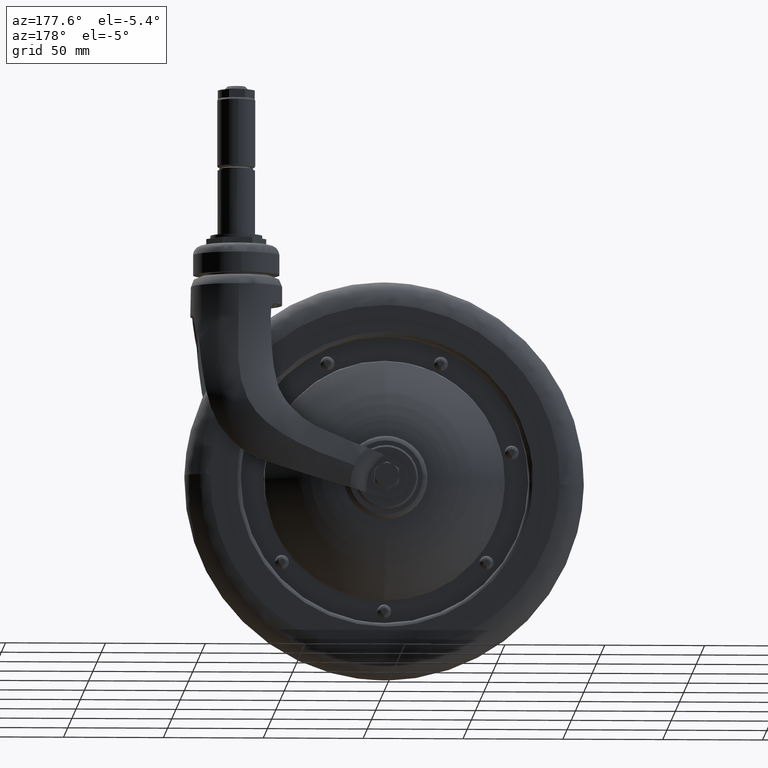
[diagram: clean part render]
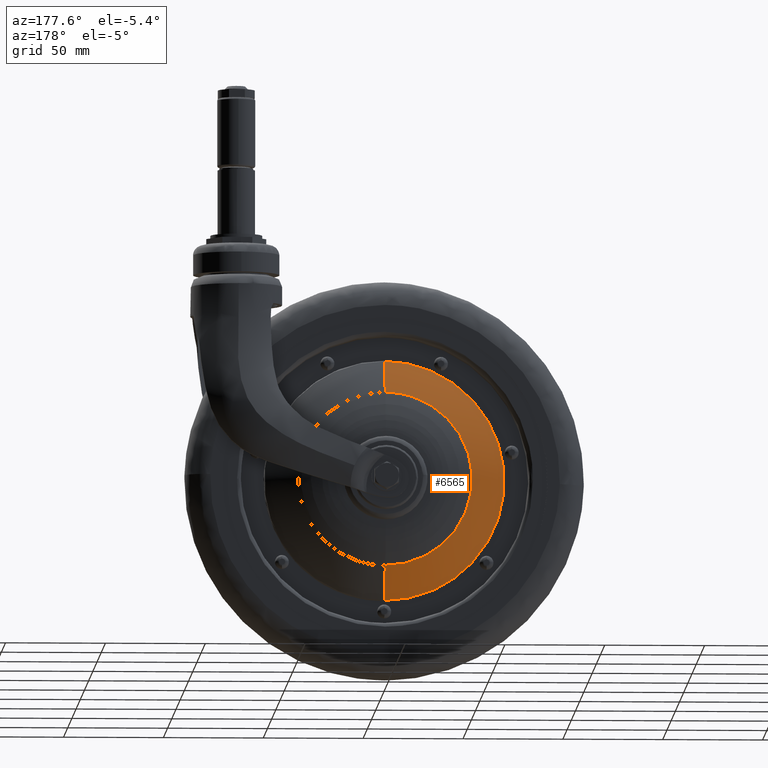
[diagram: same view with one face highlighted and labeled with its STEP entity id]
A machine part, auxiliary view. The second image highlights one B-rep face of the part: STEP entity #6565.
In plain terms, the highlighted face is a freeform B-spline surface patch.
Its self-contained STEP definition (entity closure, byte-faithful):
#6289=CARTESIAN_POINT('',(0.0,14.426294679062700,43.519748776958892));
#6290=VERTEX_POINT('',#6289);
#6304=CARTESIAN_POINT('',(0.0,14.426293921308540,-43.519750632905136));
#6305=VERTEX_POINT('',#6304);
#6376=CARTESIAN_POINT('',(0.0,14.426293921308540,-43.519750632905136));
#6377=CARTESIAN_POINT('',(-3.204429025812484,14.426293921303930,-43.520285750305639));
#6378=CARTESIAN_POINT('',(-9.078854022232223,14.426293926983050,-42.867949170981902));
#6379=CARTESIAN_POINT('',(-16.988373624367561,14.426293949262959,-40.308750949012072));
#6380=CARTESIAN_POINT('',(-22.747933721102449,14.426293975869299,-37.252641916797032));
#6381=CARTESIAN_POINT('',(-27.390841468042431,14.426294004710311,-33.939787604340623));
#6382=CARTESIAN_POINT('',(-31.632513900852040,14.426294037971140,-30.119287169892530));
#6383=CARTESIAN_POINT('',(-35.556753745187947,14.426294079341600,-25.367275822851632));
#6384=CARTESIAN_POINT('',(-38.875197012715297,14.426294127209429,-19.868924312176642));
#6385=CARTESIAN_POINT('',(-41.583215180949942,14.426294182200239,-13.552402601567440));
#6386=CARTESIAN_POINT('',(-43.298475531406730,14.426294245079641,-6.329770132339528));
#6387=CARTESIAN_POINT('',(-43.670701623999129,14.426294307200809,0.805843836835949));
#6388=CARTESIAN_POINT('',(-43.018558311774079,14.426294366723861,7.642903368665209));
#6389=CARTESIAN_POINT('',(-41.458092394142092,14.426294420264391,13.792854195458990));
#6390=CARTESIAN_POINT('',(-39.155053886689643,14.426294467431321,19.210695399825951));
#6391=CARTESIAN_POINT('',(-36.563410225243359,14.426294507260110,23.785624417072981));
#6392=CARTESIAN_POINT('',(-33.348517606332003,14.426294545487281,28.176596539333879));
#6393=CARTESIAN_POINT('',(-29.062071665567061,14.426294583967600,32.596640806761251));
#6394=CARTESIAN_POINT('',(-23.830425911648010,14.426294619064780,36.628082913277993));
#6395=CARTESIAN_POINT('',(-17.324984598395950,14.426294650013091,40.182961236517549));
#6396=CARTESIAN_POINT('',(-9.256908416632848,14.426294673216940,42.848274275216149));
#6397=CARTESIAN_POINT('',(-3.204426129369170,14.426294679067100,43.520253532561568));
#6398=CARTESIAN_POINT('',(0.0,14.426294679062700,43.519748776958892));
#6399=B_SPLINE_CURVE_WITH_KNOTS('',3,(#6376,#6377,#6378,#6379,#6380,#6381,#6382,#6383,#6384,#6385,#6386,#6387,#6388,#6389,#6390,#6391,#6392,#6393,#6394,#6395,#6396,#6397,#6398),.UNSPECIFIED.,.F.,.U.,(4,1,1,1,1,1,1,1,1,1,1,1,1,1,1,1,1,1,1,1,4),(0.000000544063340,9.613152138921564,17.624144033365742,24.834184051958871,29.106722870998968,34.714462824327228,41.924441736003700,47.532180446366198,53.940960594889901,62.486172732213348,69.695795147531356,75.303485190742663,83.047640706510464,88.655314255767962,92.927857363191407,98.802668666867973,104.944470032504700,111.353323549485400,118.563321753638600,127.108371012198900,136.721536062595590),.UNSPECIFIED.);
#6400=EDGE_CURVE('',#6305,#6290,#6399,.T.);
#6479=CARTESIAN_POINT('',(0.0,14.864097221645189,-42.594073978992583));
#6480=CARTESIAN_POINT('',(0.0,10.151307897140406,-52.765506326543886));
#6481=CARTESIAN_POINT('',(0.0,2.299362691383856,-60.766467250318968));
#6482=CARTESIAN_POINT('',(-42.594073978992583,14.864097221645190,-42.594073978992583));
#6483=CARTESIAN_POINT('',(-52.765506326543886,10.151307897140407,-52.765506326543886));
#6484=CARTESIAN_POINT('',(-60.766467250318968,2.299362691383857,-60.766467250318968));
#6485=CARTESIAN_POINT('',(-42.594073978992583,14.864097221645189,0.0));
#6486=CARTESIAN_POINT('',(-52.765506326543886,10.151307897140406,0.0));
#6487=CARTESIAN_POINT('',(-60.766467250318968,2.299362691383856,0.0));
#6488=CARTESIAN_POINT('',(-42.594073978992583,14.864097221645190,42.594073978992583));
#6489=CARTESIAN_POINT('',(-52.765506326543886,10.151307897140407,52.765506326543886));
#6490=CARTESIAN_POINT('',(-60.766467250318968,2.299362691383857,60.766467250318968));
#6491=CARTESIAN_POINT('',(0.0,14.864097221645189,42.594073978992583));
#6492=CARTESIAN_POINT('',(0.0,10.151307897140406,52.765506326543886));
#6493=CARTESIAN_POINT('',(0.0,2.299362691383856,60.766467250318968));
#6501=(BOUNDED_SURFACE()B_SPLINE_SURFACE(2,2,((#6479,#6482,#6485,#6488,#6491),(#6480,#6483,#6486,#6489,#6492),(#6481,#6484,#6487,#6490,#6493)),.UNSPECIFIED.,.F.,.F.,.U.)B_SPLINE_SURFACE_WITH_KNOTS((3,3),(3,2,3),(0.0,22.555028219118029),(0.0,100.681179490330510,201.362358980661010),.UNSPECIFIED.)GEOMETRIC_REPRESENTATION_ITEM()RATIONAL_B_SPLINE_SURFACE(((0.912908617255432,0.645523873864950,0.912908617255432,0.645523873864950,0.912908617255432),(0.918390979940247,0.649400489696307,0.918390979940247,0.649400489696307,0.918390979940247),(0.951475800138773,0.672794990413023,0.951475800138773,0.672794990413023,0.951475800138773)))REPRESENTATION_ITEM('')SURFACE());
#6502=CARTESIAN_POINT('',(0.0,2.983451170038048,-60.058738563332433));
#6503=VERTEX_POINT('',#6502);
#6504=CARTESIAN_POINT('',(0.0,14.426293921308545,-43.519750632905151));
#6505=CARTESIAN_POINT('',(0.0,10.001935130455411,-52.686644345067293));
#6506=CARTESIAN_POINT('',(0.0,2.983451170038048,-60.058738563332426));
#6514=(BOUNDED_CURVE()B_SPLINE_CURVE(2,(#6504,#6505,#6506),.UNSPECIFIED.,.F.,.U.)B_SPLINE_CURVE_WITH_KNOTS((3,3),(0.189422017648159,0.274200104329599),.UNSPECIFIED.)CURVE()GEOMETRIC_REPRESENTATION_ITEM()RATIONAL_B_SPLINE_CURVE((0.913463487858301,0.919587571795010,0.948527744978291))REPRESENTATION_ITEM(''));
#6515=EDGE_CURVE('',#6305,#6503,#6514,.T.);
#6516=ORIENTED_EDGE('',*,*,#6515,.T.);
#6517=CARTESIAN_POINT('',(-43.780931671036257,2.983453204248018,-41.113031402047952));
#6518=VERTEX_POINT('',#6517);
#6519=CARTESIAN_POINT('',(0.0,2.983451170038048,-60.058738563332433));
#6520=CARTESIAN_POINT('',(-25.989735590526102,2.983452187156867,-60.058739234204701));
#6521=CARTESIAN_POINT('',(-43.780931671036264,2.983453204248019,-41.113031402047937));
#6529=(BOUNDED_CURVE()B_SPLINE_CURVE(2,(#6519,#6520,#6521),.UNSPECIFIED.,.F.,.U.)B_SPLINE_CURVE_WITH_KNOTS((3,3),(0.0,0.129740706492735),.UNSPECIFIED.)CURVE()GEOMETRIC_REPRESENTATION_ITEM()RATIONAL_B_SPLINE_CURVE((1.0,0.847999307456846,0.853764032817162))REPRESENTATION_ITEM(''));
#6530=EDGE_CURVE('',#6503,#6518,#6529,.T.);
#6531=ORIENTED_EDGE('',*,*,#6530,.T.);
#6532=CARTESIAN_POINT('',(0.0,2.983451169861591,60.058738563517807));
#6533=VERTEX_POINT('',#6532);
#6534=CARTESIAN_POINT('',(-43.780931671036264,2.983453204248019,-41.113031402047937));
#6535=CARTESIAN_POINT('',(-60.058724450589892,2.983453029956093,-23.778933546787236));
#6536=CARTESIAN_POINT('',(-60.058724167736258,2.983452627215342,-0.000000961092002));
#6537=CARTESIAN_POINT('',(-60.058723453329357,2.983451610008129,60.058738273205499));
#6538=CARTESIAN_POINT('',(0.0,2.983451169861591,60.058738563517807));
#6546=(BOUNDED_CURVE()B_SPLINE_CURVE(2,(#6534,#6535,#6536,#6537,#6538),.UNSPECIFIED.,.F.,.U.)B_SPLINE_CURVE_WITH_KNOTS((3,2,3),(0.129740706492735,0.250000000000000,0.500000000000000),.UNSPECIFIED.)CURVE()GEOMETRIC_REPRESENTATION_ITEM()RATIONAL_B_SPLINE_CURVE((0.853764032817162,0.859107473729701,1.0,0.707106781186547,1.0))REPRESENTATION_ITEM(''));
#6547=EDGE_CURVE('',#6518,#6533,#6546,.T.);
#6548=ORIENTED_EDGE('',*,*,#6547,.T.);
#6549=CARTESIAN_POINT('',(0.0,14.426294679062705,43.519748776958885));
#6550=CARTESIAN_POINT('',(0.0,10.001935781207365,52.686643575787301));
#6551=CARTESIAN_POINT('',(0.0,2.983451169861591,60.058738563517807));
#6559=(BOUNDED_CURVE()B_SPLINE_CURVE(2,(#6549,#6550,#6551),.UNSPECIFIED.,.F.,.U.)B_SPLINE_CURVE_WITH_KNOTS((3,3),(0.189422009371303,0.274200104330698),.UNSPECIFIED.)CURVE()GEOMETRIC_REPRESENTATION_ITEM()RATIONAL_B_SPLINE_CURVE((0.913463486662517,0.919587568969671,0.948527744979041))REPRESENTATION_ITEM(''));
#6560=EDGE_CURVE('',#6290,#6533,#6559,.T.);
#6561=ORIENTED_EDGE('',*,*,#6560,.F.);
#6562=ORIENTED_EDGE('',*,*,#6400,.F.);
#6563=EDGE_LOOP('',(#6516,#6531,#6548,#6561,#6562));
#6564=FACE_OUTER_BOUND('',#6563,.T.);
#6565=ADVANCED_FACE('',(#6564),#6501,.T.);